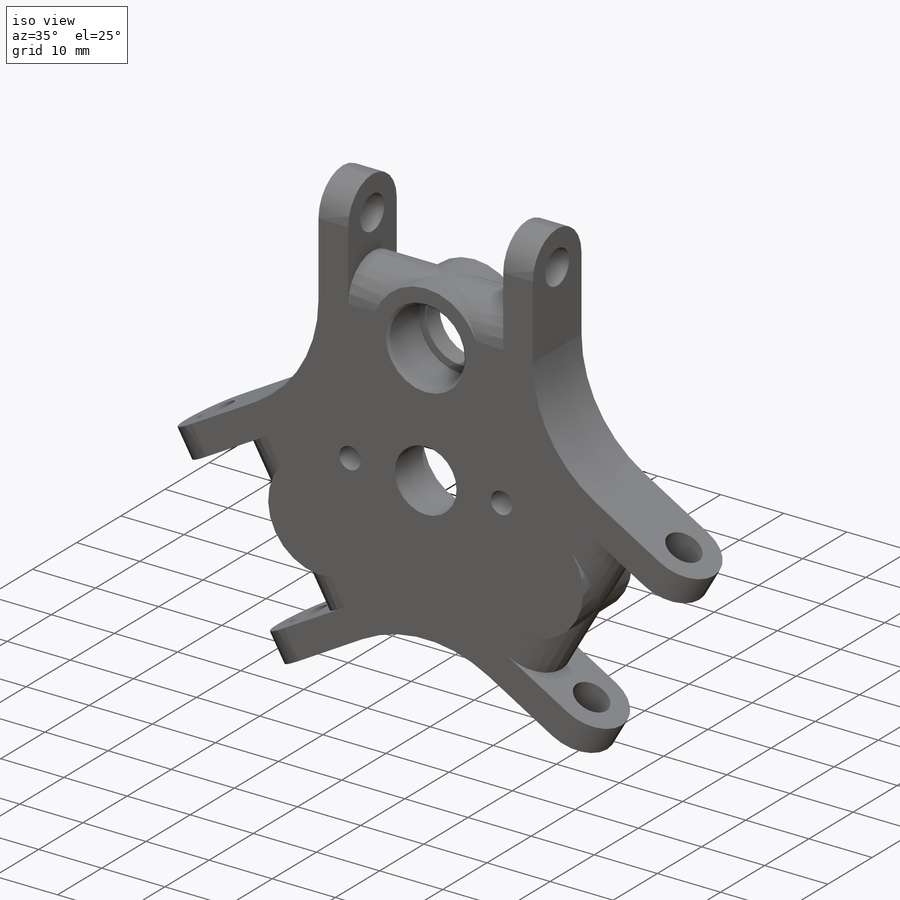
[diagram: iso view]
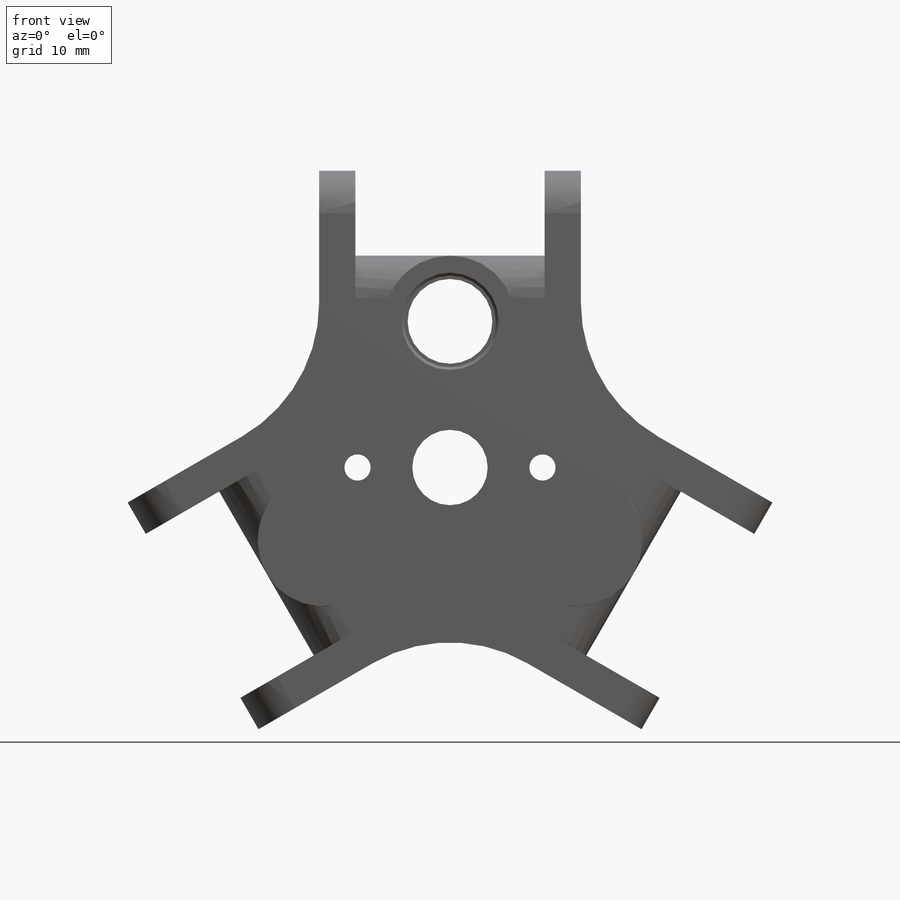
[diagram: front view]
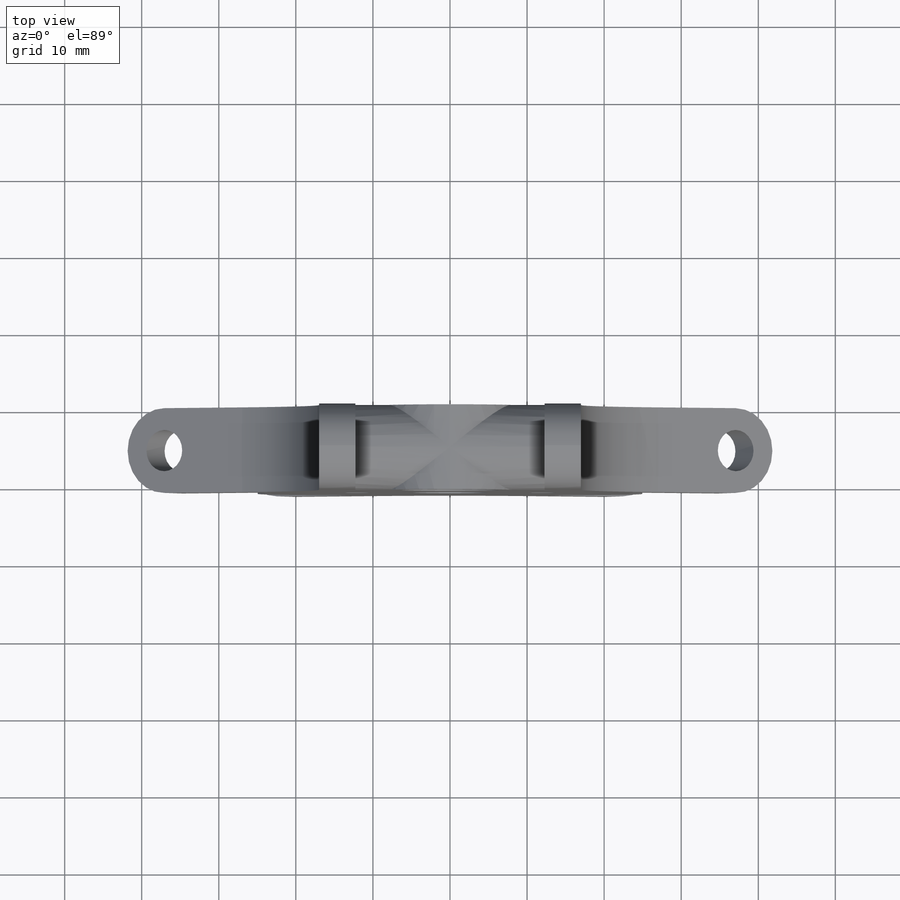
[diagram: top view]
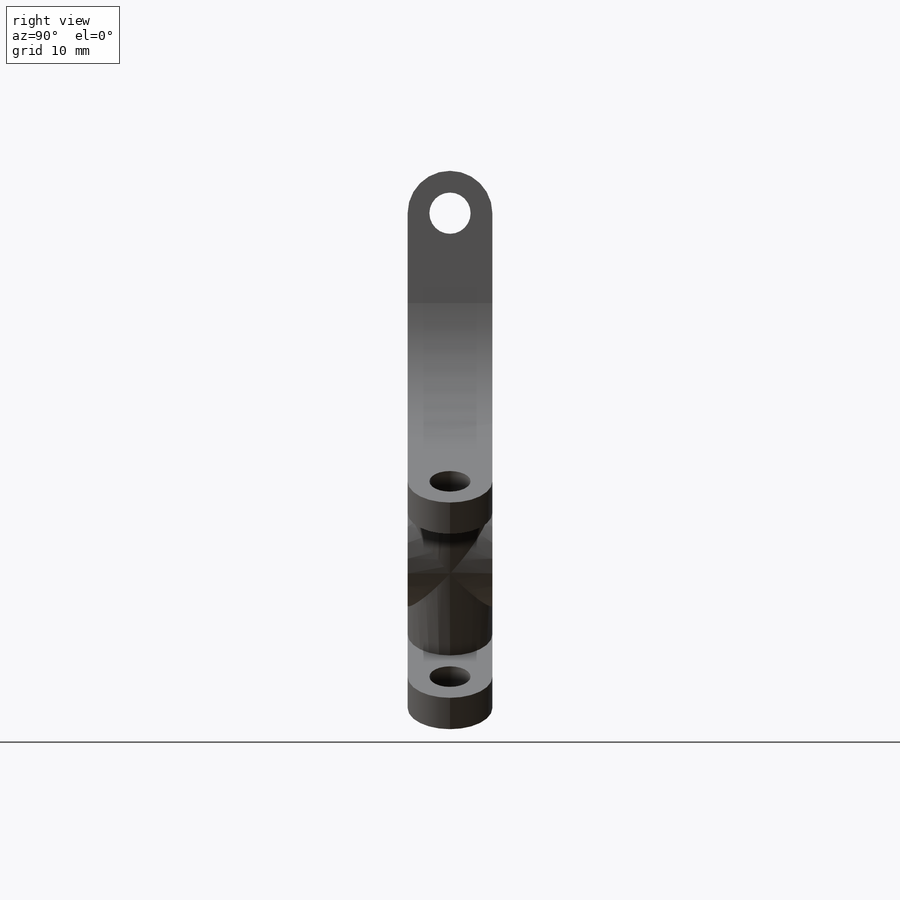
[diagram: right view]
SOLIDWORKS PART (.sldprt)
format: sldprt  version: not decoded by parser v0  size: 543,232 bytes
history: native  units: mm
features: sketch x13, cut_extrude x7, extrude x6, fillet x2, chamfer x2, material x1 (+16 scaffold rows collapsed)
feature tree (47):
  scaffold x16  (default folders/planes/origin — collapsed)
  material  "Material <not specified>"
  sketch  "Sketch1"  dims[c1.D2=16.3mm c1.D1=84.0mm c1.D3=20.0mm c1.D6=16.3mm c1.D7=20.0mm c1.D8=20.0mm c1.D10=84.0mm c2.D2=20.0mm c2.D1=5.5mm c2.D3=9.0mm c2.D4=4.7mm c2.D5=11.0mm c2.D6=4.7mm c2.D7=11.0mm c2.D9=~24.561524mm c2.D10=~17.149147mm c3.D10=120.0deg c3.D9=~33.961524mm c3.D3=4.7mm c3.D4=~8.574574mm c4.D4=120.0deg c4.D5=~17.149147mm c5.D5=120.0deg c5.D7=~17.149147mm c6.D7=120.0deg c7.D7=~24.561524mm c7.D8=~17.149147mm c8.D8=120.0deg c8.D3=4.7mm]
  extrude  "Boss-Extrude1"  Depth=11mm
  fillet  "Fillet1"  Radius=5.5mm
  sketch  "Sketch5"
  extrude  "Boss-Extrude2"  Depth=11mm
  sketch  "Sketch6"
  extrude  "Boss-Extrude3"  Depth=11mm
  sketch  "Sketch7"
  extrude  "Boss-Extrude4"  Depth=11mm
  sketch  "Sketch8"  dims[D1=24.0mm D2=3.4mm]
  cut_extrude  "Cut-Extrude4"  [1 undecoded]
  sketch  "Sketch12"  dims[D1=16.3mm]
  extrude  "Boss-Extrude5"  Depth=6.25mm
  sketch  "Sketch14"  dims[D1=9.779mm D2=25.654mm]
  cut_extrude  "Cut-Extrude7"  [1 undecoded]
  sketch  "Sketch15"  dims[D1=13.4mm]
  cut_extrude  "Cut-Extrude8"  Depth=8mm
  sketch  "Sketch16"  dims[D1=11.0mm]
  cut_extrude  "Cut-Extrude9"  [1 undecoded]
  sketch  "Sketch18"  dims[D1=0.75mm]
  extrude  "Boss-Extrude6"  Depth=0.75mm
  chamfer  "Chamfer1"  Distance=0.375mm Angle=45deg
  chamfer  "Chamfer2"  Distance=0.375mm Angle=45deg
  fillet  "Fillet2"  Radius=5.5mm
  sketch  "Sketch19"  dims[D1=5.35mm]
  cut_extrude  "Cut-Extrude10"  [1 undecoded]
  sketch  "Sketch20"  dims[D1=5.35mm]
  cut_extrude  "Cut-Extrude11"  [1 undecoded]
  sketch  "Sketch21"  dims[D1=5.35mm]
  cut_extrude  "Cut-Extrude12"  [1 undecoded]
decode coverage: 21 of 30 modeling features carry decoded parameters
note: ~ marks probable driven/reference dimensions
note: 6 parameter values undecoded
summary: no parameter record found for 6 features
note: suppression state not decoded; provenance and decode notes live in map.json
